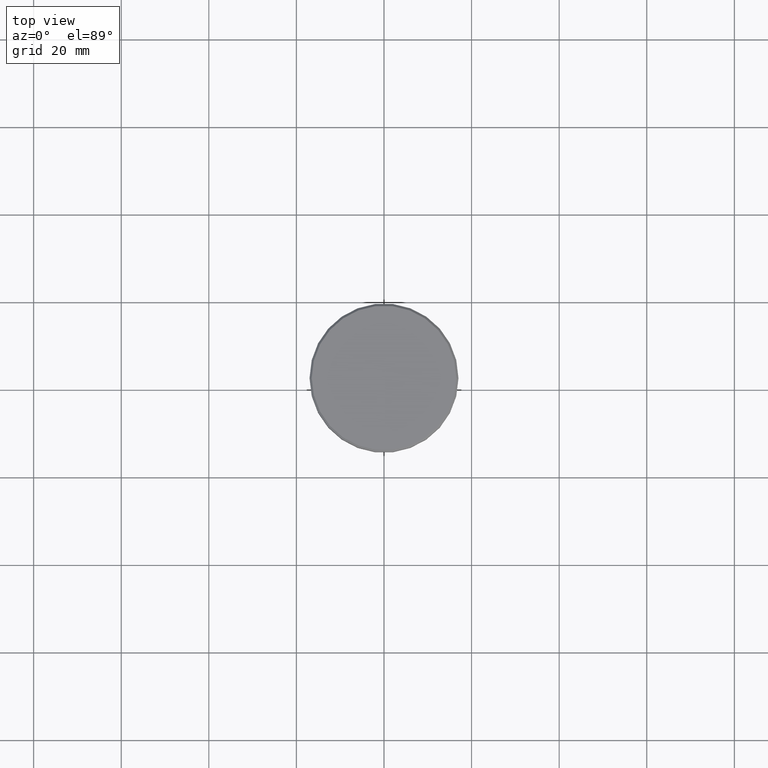
[diagram: clean part render]
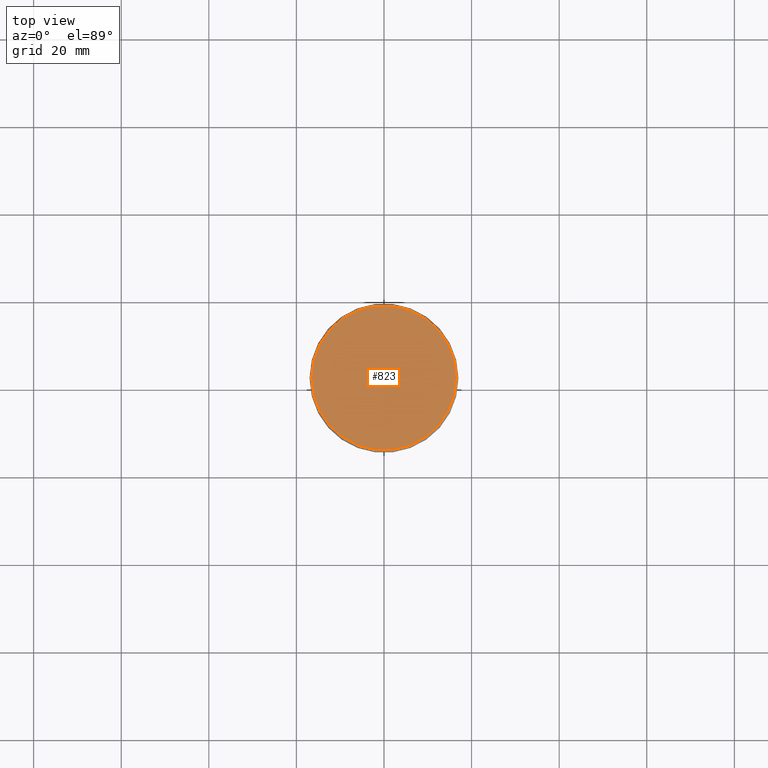
[diagram: same view with one face highlighted and labeled with its STEP entity id]
A machine part, top view. The second image highlights one B-rep face of the part: STEP entity #823.
In plain terms, the highlighted planar face has unit normal (0, -0, 1).
Its self-contained STEP definition (entity closure, byte-faithful):
#40 = CARTESIAN_POINT ( 'NONE',  ( -16.50000000000000000, 0.000000000000000000, 0.000000000000000000 ) ) ;
#146 = ORIENTED_EDGE ( 'NONE', *, *, #441, .T. ) ;
#197 = CARTESIAN_POINT ( 'NONE',  ( 0.000000000000000000, 0.000000000000000000, 0.000000000000000000 ) ) ;
#202 = EDGE_CURVE ( 'NONE', #436, #440, #860, .T. ) ;
#203 = AXIS2_PLACEMENT_3D ( 'NONE', #681, #688, #224 ) ;
#224 = DIRECTION ( 'NONE',  ( 1.000000000000000000, 0.000000000000000000, 0.000000000000000000 ) ) ;
#228 = DIRECTION ( 'NONE',  ( 1.000000000000000000, 0.000000000000000000, 0.000000000000000000 ) ) ;
#244 = AXIS2_PLACEMENT_3D ( 'NONE', #963, #1051, #228 ) ;
#332 = EDGE_LOOP ( 'NONE', ( #146, #413 ) ) ;
#413 = ORIENTED_EDGE ( 'NONE', *, *, #202, .T. ) ;
#436 = VERTEX_POINT ( 'NONE', #1137 ) ;
#440 = VERTEX_POINT ( 'NONE', #40 ) ;
#441 = EDGE_CURVE ( 'NONE', #440, #436, #725, .T. ) ;
#569 = DIRECTION ( 'NONE',  ( -0.000000000000000000, -0.000000000000000000, 1.000000000000000000 ) ) ;
#643 = AXIS2_PLACEMENT_3D ( 'NONE', #197, #569, #934 ) ;
#681 = CARTESIAN_POINT ( 'NONE',  ( 0.000000000000000000, 0.000000000000000000, 0.000000000000000000 ) ) ;
#688 = DIRECTION ( 'NONE',  ( -0.000000000000000000, -0.000000000000000000, 1.000000000000000000 ) ) ;
#689 = FACE_OUTER_BOUND ( 'NONE', #332, .T. ) ;
#725 = CIRCLE ( 'NONE', #203, 16.50000000000000000 ) ;
#785 = PLANE ( 'NONE',  #244 ) ;
#823 = ADVANCED_FACE ( 'NONE', ( #689 ), #785, .T. ) ;
#860 = CIRCLE ( 'NONE', #643, 16.50000000000000000 ) ;
#934 = DIRECTION ( 'NONE',  ( 1.000000000000000000, 0.000000000000000000, 0.000000000000000000 ) ) ;
#963 = CARTESIAN_POINT ( 'NONE',  ( 0.000000000000000000, 0.000000000000000000, 0.000000000000000000 ) ) ;
#1051 = DIRECTION ( 'NONE',  ( 0.000000000000000000, -0.000000000000000000, 1.000000000000000000 ) ) ;
#1137 = CARTESIAN_POINT ( 'NONE',  ( 16.50000000000000000, 2.051283388571816887E-15, 0.000000000000000000 ) ) ;